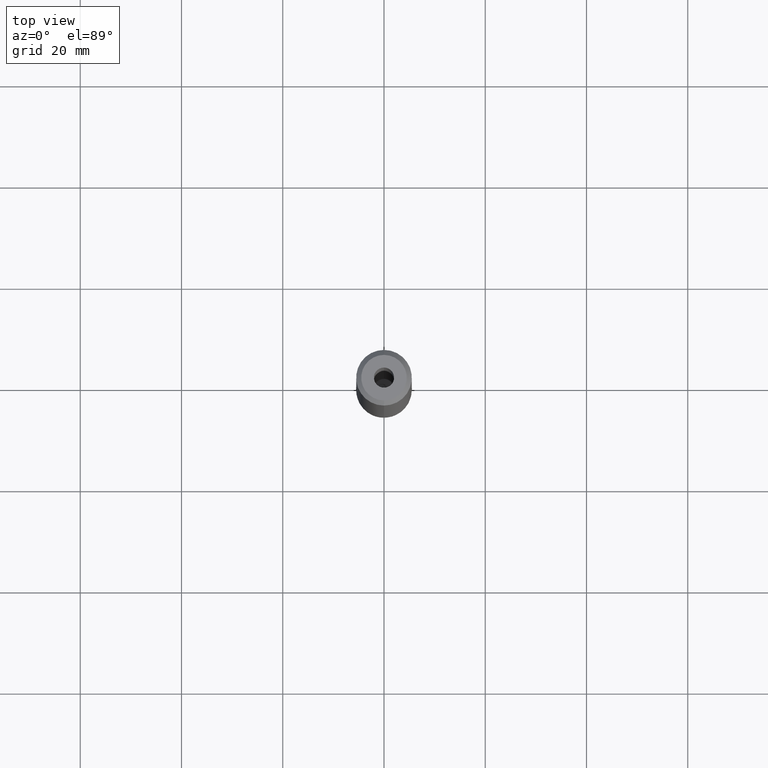
[diagram: clean part render]
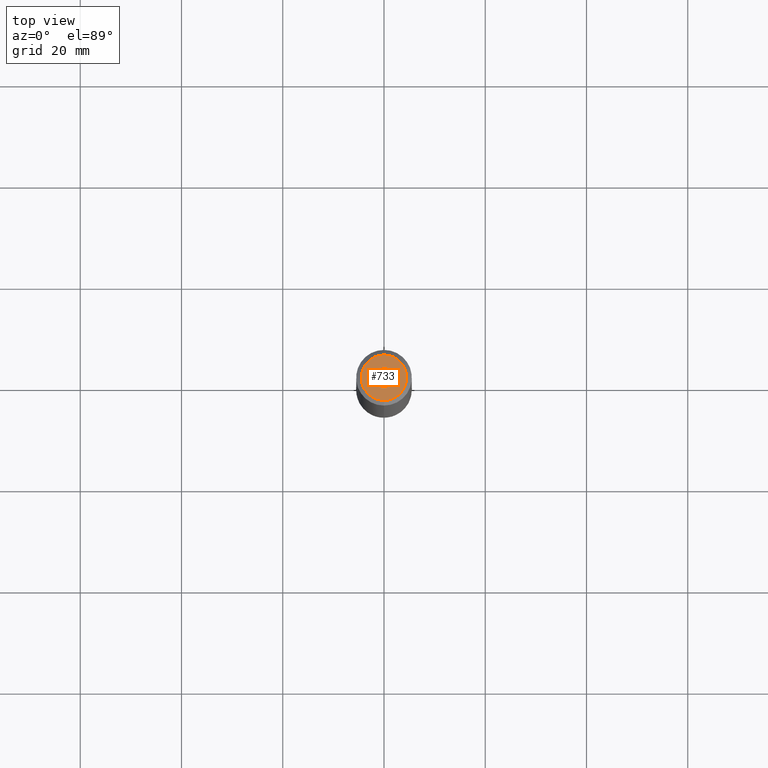
[diagram: same view with one face highlighted and labeled with its STEP entity id]
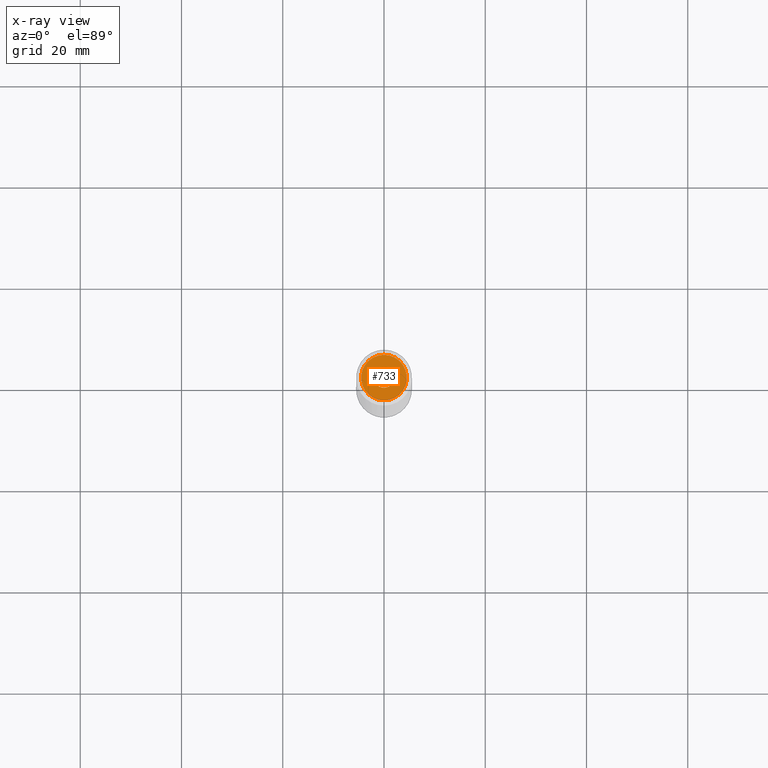
[diagram: x-ray of the same camera — body ghosted, the highlighted face saturated]
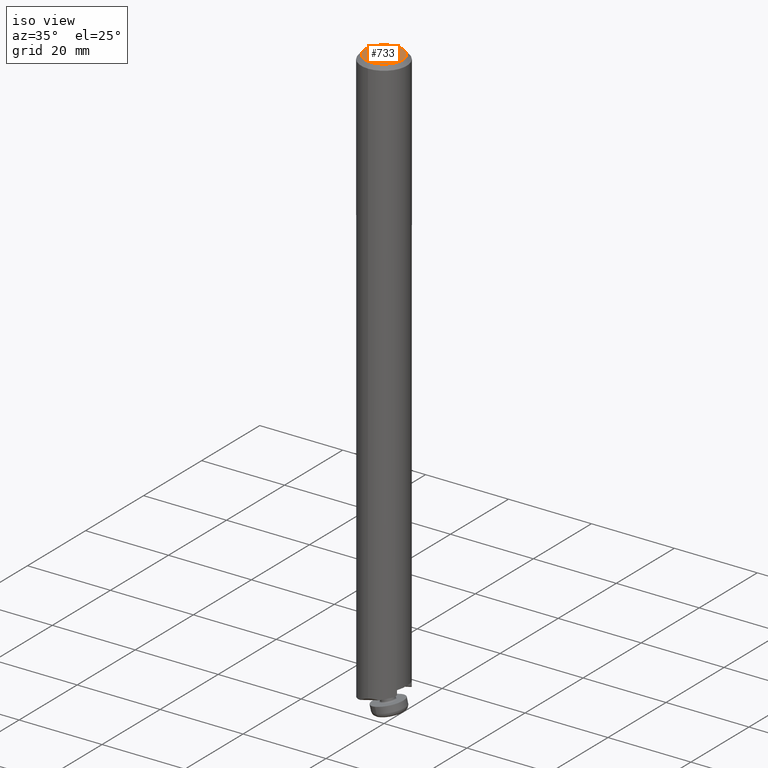
[diagram: same view with one face highlighted and labeled with its STEP entity id]
A machine part, top view. The second image highlights one B-rep face of the part: STEP entity #733.
The next image is the same camera in x-ray: the body ghosted, the highlighted face saturated — about 0% of this face is hidden behind the body in this view.
A second angle (iso view) of the same face is appended — the face is thin or edge-on in the first view.
In plain terms, the highlighted planar face has unit normal (0, 0, -1).
Its self-contained STEP definition (entity closure, byte-faithful):
#357=EDGE_CURVE('NONE',#619,#929,#1024,.T.);
#549=EDGE_CURVE('NONE',#699,#993,#1238,.T.);
#619=VERTEX_POINT('NONE',#1321);
#699=VERTEX_POINT('NONE',#1411);
#733=ADVANCED_FACE('NONE',(#1448,#1449),#1450,.F.);
#887=EDGE_CURVE('NONE',#993,#699,#1618,.T.);
#901=EDGE_CURVE('NONE',#929,#619,#1632,.T.);
#929=VERTEX_POINT('NONE',#1665);
#993=VERTEX_POINT('NONE',#1736);
#1024=CIRCLE('',#1761,1.99999999999999);
#1238=CIRCLE('',#2086,4.49999999999998);
#1321=CARTESIAN_POINT('',(-2.44921270764474E-016,-1.99999999999999,140.0));
#1411=CARTESIAN_POINT('',(-6.12303176911187E-016,4.49999999999998,140.0));
#1448=FACE_OUTER_BOUND('',#2445,.T.);
#1449=FACE_BOUND('',#2446,.T.);
#1450=PLANE('',#2447);
#1618=CIRCLE('',#2774,4.49999999999998);
#1632=CIRCLE('',#2797,1.99999999999999);
#1665=CARTESIAN_POINT('',(0.0,1.99999999999999,140.0));
#1736=CARTESIAN_POINT('',(0.0,-4.49999999999998,140.0));
#1761=AXIS2_PLACEMENT_3D('',#2989,#2990,#2991);
#2086=AXIS2_PLACEMENT_3D('',#3260,#3261,#3262);
#2445=EDGE_LOOP('',(#3515,#3516));
#2446=EDGE_LOOP('',(#3517,#3518));
#2447=AXIS2_PLACEMENT_3D('',#3519,#3520,#3521);
#2774=AXIS2_PLACEMENT_3D('',#3692,#3693,#3694);
#2797=AXIS2_PLACEMENT_3D('',#3702,#3703,#3704);
#2989=CARTESIAN_POINT('',(0.0,0.0,140.0));
#2990=DIRECTION('',(-0.0,0.0,1.0));
#2991=DIRECTION('',(0.0,-1.0,0.0));
#3260=CARTESIAN_POINT('',(0.0,0.0,140.0));
#3261=DIRECTION('',(-0.0,0.0,1.0));
#3262=DIRECTION('',(0.0,-1.0,0.0));
#3515=ORIENTED_EDGE('',*,*,#887,.T.);
#3516=ORIENTED_EDGE('',*,*,#549,.T.);
#3517=ORIENTED_EDGE('',*,*,#901,.F.);
#3518=ORIENTED_EDGE('',*,*,#357,.F.);
#3519=CARTESIAN_POINT('',(1.5574999149449E-014,0.0,140.0));
#3520=DIRECTION('',(0.0,0.0,-1.0));
#3521=DIRECTION('',(-1.0,0.0,0.0));
#3692=CARTESIAN_POINT('',(0.0,0.0,140.0));
#3693=DIRECTION('',(-0.0,0.0,1.0));
#3694=DIRECTION('',(0.0,-1.0,0.0));
#3702=CARTESIAN_POINT('',(0.0,0.0,140.0));
#3703=DIRECTION('',(-0.0,0.0,1.0));
#3704=DIRECTION('',(0.0,-1.0,0.0));